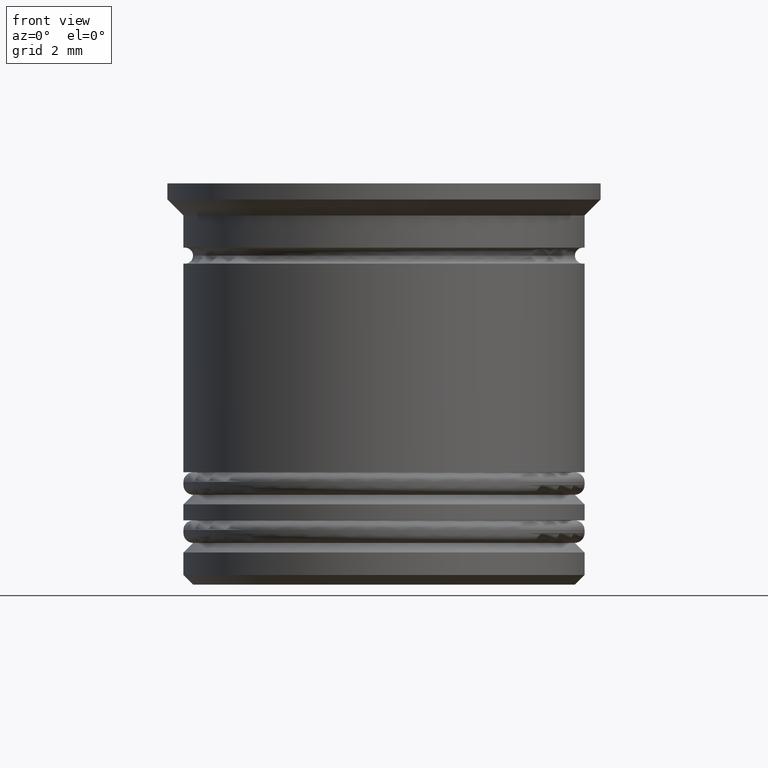
[diagram: clean part render]
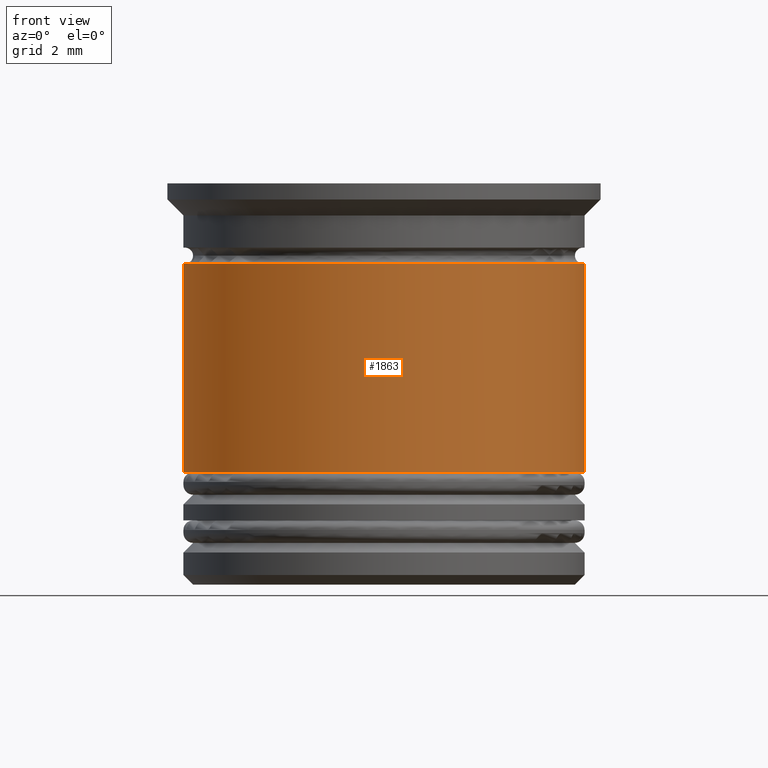
[diagram: same view with one face highlighted and labeled with its STEP entity id]
A machine part, front view. The second image highlights one B-rep face of the part: STEP entity #1863.
In plain terms, the highlighted cylindrical surface (partial cylindrical patch) has radius 6.25 mm, axis along (-0, -0, 1).
Its self-contained STEP definition (entity closure, byte-faithful):
#76 = FACE_OUTER_BOUND ( 'NONE', #1474, .T. ) ;
#189 = CARTESIAN_POINT ( 'NONE',  ( 6.250000000000000000, 0.000000000000000000, -9.000000000000001776 ) ) ;
#250 = AXIS2_PLACEMENT_3D ( 'NONE', #1653, #968, #1575 ) ;
#253 = CYLINDRICAL_SURFACE ( 'NONE', #1604, 6.249999999999999112 ) ;
#281 = AXIS2_PLACEMENT_3D ( 'NONE', #709, #1785, #862 ) ;
#386 = VECTOR ( 'NONE', #1331, 1000.000000000000000 ) ;
#417 = LINE ( 'NONE', #568, #386 ) ;
#467 = CARTESIAN_POINT ( 'NONE',  ( -6.249999999999998224, 7.654042494670956620E-16, -2.499999999999998668 ) ) ;
#493 = ORIENTED_EDGE ( 'NONE', *, *, #1966, .T. ) ;
#568 = CARTESIAN_POINT ( 'NONE',  ( 6.249999999999999112, 0.000000000000000000, 0.000000000000000000 ) ) ;
#627 = ORIENTED_EDGE ( 'NONE', *, *, #780, .F. ) ;
#676 = CARTESIAN_POINT ( 'NONE',  ( 0.000000000000000000, 0.000000000000000000, 0.000000000000000000 ) ) ;
#678 = VERTEX_POINT ( 'NONE', #1839 ) ;
#687 = ORIENTED_EDGE ( 'NONE', *, *, #970, .T. ) ;
#709 = CARTESIAN_POINT ( 'NONE',  ( 0.000000000000000000, 0.000000000000000000, -9.000000000000001776 ) ) ;
#713 = VERTEX_POINT ( 'NONE', #467 ) ;
#733 = VECTOR ( 'NONE', #838, 1000.000000000000000 ) ;
#780 = EDGE_CURVE ( 'NONE', #896, #713, #795, .T. ) ;
#795 = LINE ( 'NONE', #1281, #733 ) ;
#823 = DIRECTION ( 'NONE',  ( -0.000000000000000000, -0.000000000000000000, 1.000000000000000000 ) ) ;
#838 = DIRECTION ( 'NONE',  ( -0.000000000000000000, -0.000000000000000000, 1.000000000000000000 ) ) ;
#862 = DIRECTION ( 'NONE',  ( 1.000000000000000000, 0.000000000000000000, 0.000000000000000000 ) ) ;
#896 = VERTEX_POINT ( 'NONE', #1135 ) ;
#909 = VERTEX_POINT ( 'NONE', #189 ) ;
#968 = DIRECTION ( 'NONE',  ( -0.000000000000000000, -0.000000000000000000, 1.000000000000000000 ) ) ;
#970 = EDGE_CURVE ( 'NONE', #896, #909, #1433, .T. ) ;
#1133 = EDGE_CURVE ( 'NONE', #713, #678, #1249, .T. ) ;
#1135 = CARTESIAN_POINT ( 'NONE',  ( -6.250000000000000888, 7.654042494670958593E-16, -9.000000000000001776 ) ) ;
#1249 = CIRCLE ( 'NONE', #250, 6.249999999999998224 ) ;
#1281 = CARTESIAN_POINT ( 'NONE',  ( -6.249999999999999112, 7.654042494670956620E-16, 0.000000000000000000 ) ) ;
#1328 = ORIENTED_EDGE ( 'NONE', *, *, #1133, .F. ) ;
#1331 = DIRECTION ( 'NONE',  ( -0.000000000000000000, -0.000000000000000000, 1.000000000000000000 ) ) ;
#1433 = CIRCLE ( 'NONE', #281, 6.250000000000000000 ) ;
#1451 = DIRECTION ( 'NONE',  ( 1.000000000000000000, 0.000000000000000000, 0.000000000000000000 ) ) ;
#1474 = EDGE_LOOP ( 'NONE', ( #627, #687, #493, #1328 ) ) ;
#1575 = DIRECTION ( 'NONE',  ( 1.000000000000000000, 0.000000000000000000, 0.000000000000000000 ) ) ;
#1604 = AXIS2_PLACEMENT_3D ( 'NONE', #676, #823, #1451 ) ;
#1653 = CARTESIAN_POINT ( 'NONE',  ( 0.000000000000000000, 0.000000000000000000, -2.499999999999998668 ) ) ;
#1785 = DIRECTION ( 'NONE',  ( -0.000000000000000000, -0.000000000000000000, 1.000000000000000000 ) ) ;
#1839 = CARTESIAN_POINT ( 'NONE',  ( 6.249999999999998224, 0.000000000000000000, -2.499999999999998668 ) ) ;
#1863 = ADVANCED_FACE ( 'NONE', ( #76 ), #253, .T. ) ;
#1966 = EDGE_CURVE ( 'NONE', #909, #678, #417, .T. ) ;